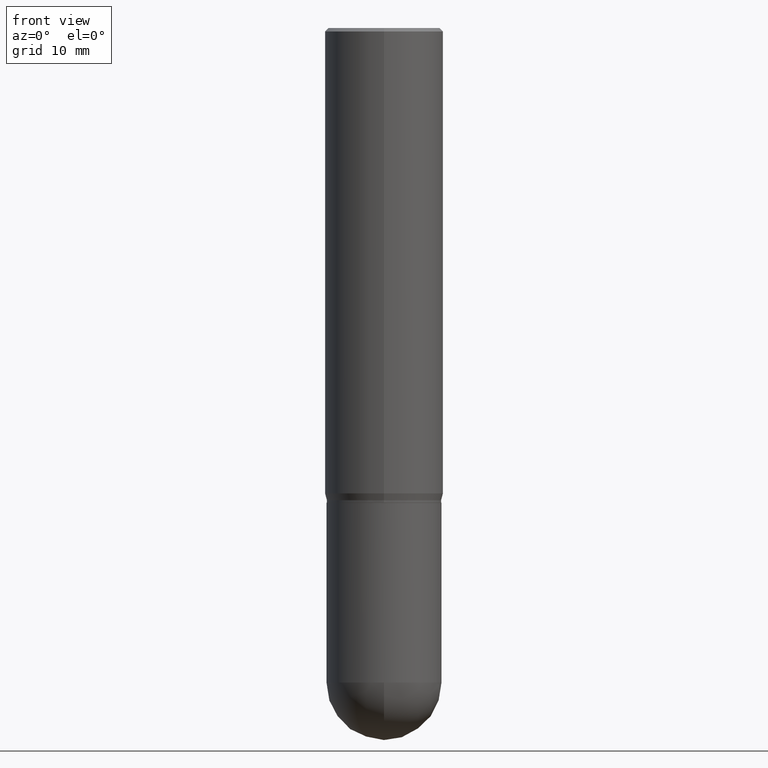
[diagram: clean part render]
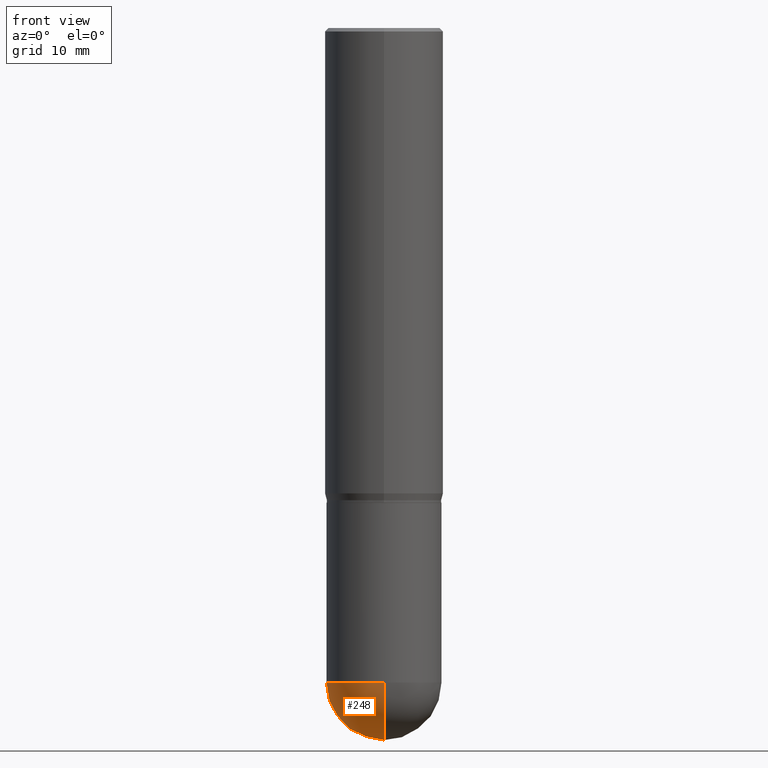
[diagram: same view with one face highlighted and labeled with its STEP entity id]
A machine part, front view. The second image highlights one B-rep face of the part: STEP entity #248.
In plain terms, the highlighted spherical surface has radius 6.1519 mm.
Its self-contained STEP definition (entity closure, byte-faithful):
#12 = CIRCLE ( 'NONE', #365, 0.2422000000000000264 ) ;
#31 = ORIENTED_EDGE ( 'NONE', *, *, #243, .F. ) ;
#32 = DIRECTION ( 'NONE',  ( -1.000000000000000000, 6.982962677686265922E-15, -4.883557194083112340E-29 ) ) ;
#58 = VERTEX_POINT ( 'NONE', #165 ) ;
#62 = CARTESIAN_POINT ( 'NONE',  ( 7.326050354793448959E-29, -1.048927448926711285E-14, -3.000000000000000444 ) ) ;
#64 = DIRECTION ( 'NONE',  ( 1.000000000000000000, -6.982962677686265922E-15, 0.000000000000000000 ) ) ;
#73 = ORIENTED_EDGE ( 'NONE', *, *, #435, .F. ) ;
#92 = VERTEX_POINT ( 'NONE', #481 ) ;
#93 = CARTESIAN_POINT ( 'NONE',  ( 6.723401746173445627E-29, -9.658468181736976725E-15, -2.757800000000000473 ) ) ;
#106 = DIRECTION ( 'NONE',  ( -2.445468806185136597E-29, 3.491481338843145583E-15, 1.000000000000000000 ) ) ;
#107 = ORIENTED_EDGE ( 'NONE', *, *, #397, .F. ) ;
#114 = DIRECTION ( 'NONE',  ( -7.105427357601000281E-15, -1.000000000000000000, 0.000000000000000000 ) ) ;
#117 = DIRECTION ( 'NONE',  ( 1.000000000000000000, -6.982962677686265922E-15, 4.883557194083112340E-29 ) ) ;
#141 = EDGE_LOOP ( 'NONE', ( #31, #495, #107, #73 ) ) ;
#165 = CARTESIAN_POINT ( 'NONE',  ( -0.2422000000000000264, -6.584950450963000136E-15, -2.757800000000000473 ) ) ;
#185 = CARTESIAN_POINT ( 'NONE',  ( -1.720934506010895390E-15, -0.2422000000000096576, -2.757799999999999141 ) ) ;
#201 = AXIS2_PLACEMENT_3D ( 'NONE', #210, #32, #371 ) ;
#210 = CARTESIAN_POINT ( 'NONE',  ( 6.723401746173445627E-29, -9.658468181736976725E-15, -2.757800000000000473 ) ) ;
#218 = DIRECTION ( 'NONE',  ( 1.000000000000000000, -6.982962677686265922E-15, 0.000000000000000000 ) ) ;
#226 = VERTEX_POINT ( 'NONE', #185 ) ;
#243 = EDGE_CURVE ( 'NONE', #379, #92, #12, .T. ) ;
#246 = CIRCLE ( 'NONE', #483, 0.2422000000000000264 ) ;
#248 = ADVANCED_FACE ( 'NONE', ( #383 ), #302, .T. ) ;
#296 = CIRCLE ( 'NONE', #474, 0.2422000000000000264 ) ;
#302 = SPHERICAL_SURFACE ( 'NONE', #201, 0.2422000000000000264 ) ;
#365 = AXIS2_PLACEMENT_3D ( 'NONE', #93, #117, #411 ) ;
#371 = DIRECTION ( 'NONE',  ( 6.982962677686265922E-15, 1.000000000000000000, -4.511722532888956363E-15 ) ) ;
#379 = VERTEX_POINT ( 'NONE', #62 ) ;
#383 = FACE_OUTER_BOUND ( 'NONE', #141, .T. ) ;
#397 = EDGE_CURVE ( 'NONE', #58, #226, #459, .T. ) ;
#411 = DIRECTION ( 'NONE',  ( 6.982962677686265922E-15, 1.000000000000000000, 0.000000000000000000 ) ) ;
#414 = DIRECTION ( 'NONE',  ( -1.000000000000000000, 7.105427357601001070E-15, -4.926315508542082329E-29 ) ) ;
#418 = DIRECTION ( 'NONE',  ( -2.445468806185136597E-29, 3.491481338843145583E-15, 1.000000000000000000 ) ) ;
#420 = EDGE_CURVE ( 'NONE', #379, #226, #296, .T. ) ;
#425 = CARTESIAN_POINT ( 'NONE',  ( 6.723401746173445627E-29, -9.658468181736976725E-15, -2.757800000000000473 ) ) ;
#435 = EDGE_CURVE ( 'NONE', #92, #58, #246, .T. ) ;
#444 = AXIS2_PLACEMENT_3D ( 'NONE', #500, #106, #64 ) ;
#459 = CIRCLE ( 'NONE', #444, 0.2422000000000000264 ) ;
#464 = CARTESIAN_POINT ( 'NONE',  ( 6.744113873697370654E-29, -9.628807236261628470E-15, -2.757800000000000473 ) ) ;
#474 = AXIS2_PLACEMENT_3D ( 'NONE', #425, #414, #114 ) ;
#481 = CARTESIAN_POINT ( 'NONE',  ( 1.691273560535681242E-15, 0.2421999999999903952, -2.757800000000001361 ) ) ;
#483 = AXIS2_PLACEMENT_3D ( 'NONE', #464, #418, #218 ) ;
#495 = ORIENTED_EDGE ( 'NONE', *, *, #420, .T. ) ;
#500 = CARTESIAN_POINT ( 'NONE',  ( 6.744113873697370654E-29, -9.628807236261628470E-15, -2.757800000000000473 ) ) ;